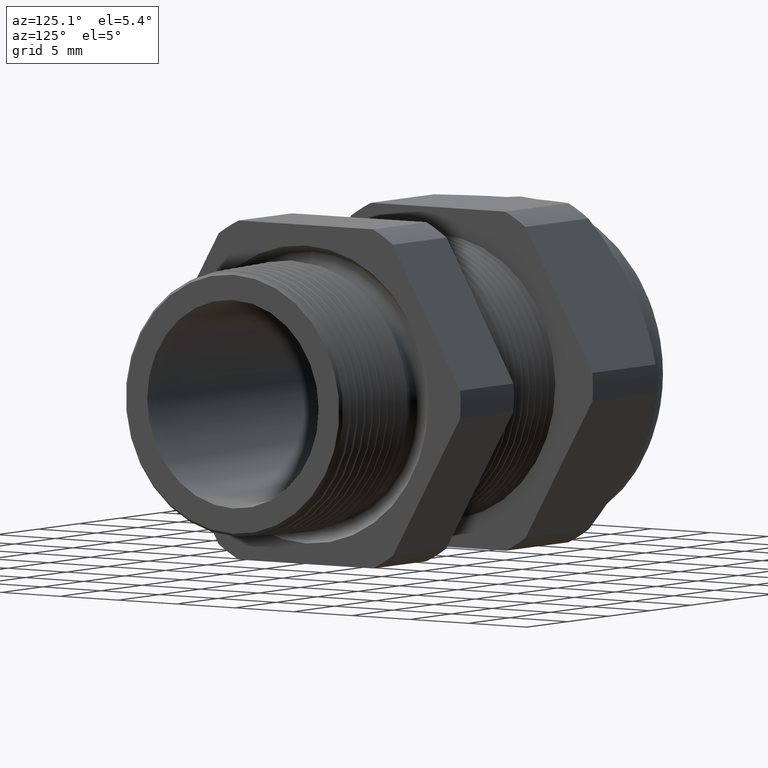
[diagram: clean part render]
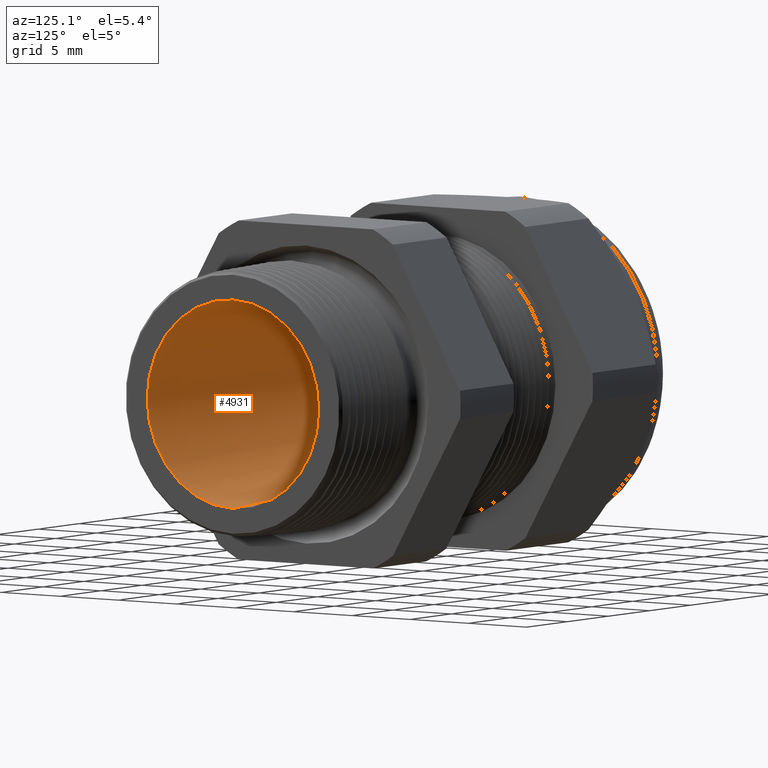
[diagram: same view with one face highlighted and labeled with its STEP entity id]
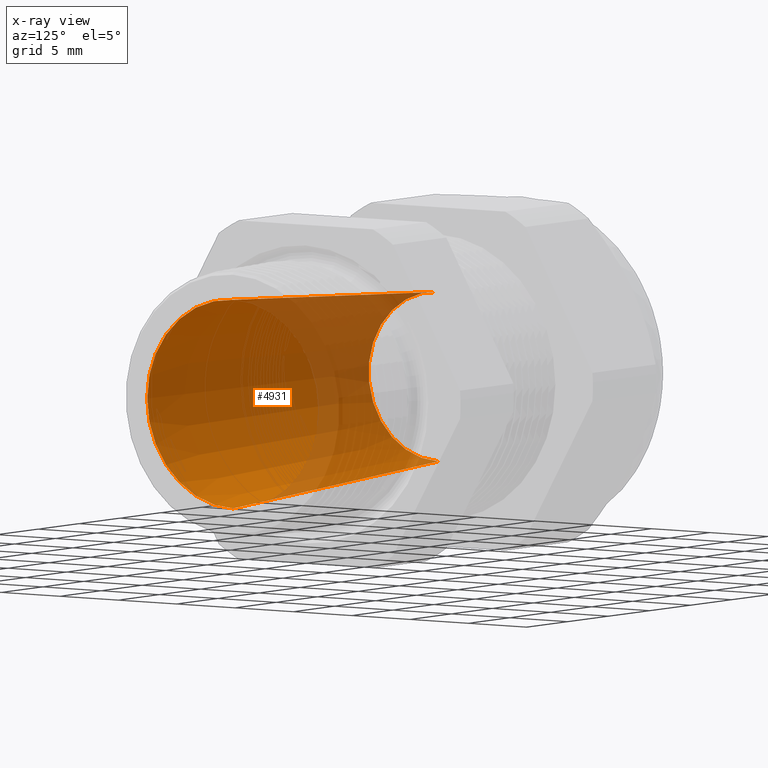
[diagram: x-ray of the same camera — body ghosted, the highlighted face saturated]
A machine part, auxiliary view. The second image highlights one B-rep face of the part: STEP entity #4931.
The next image is the same camera in x-ray: the body ghosted, the highlighted face saturated — about 36% of this face is hidden behind the body in this view.
In plain terms, the highlighted conical surface has half-angle 3.148 deg.
Its self-contained STEP definition (entity closure, byte-faithful):
#3501 = CARTESIAN_POINT ( 'NONE',  ( -0.9454330708661418100, 0.0000000000000000000, -0.2350000000000000100 ) ) ;
#3518 = DIRECTION ( 'NONE',  ( 0.9984911057575849300, 6.724985655221754600E-018, 0.05491367519111593100 ) ) ;
#3519 = VECTOR ( 'NONE', #3518, 39.37007874015748100 ) ;
#3520 = CARTESIAN_POINT ( 'NONE',  ( -0.9454330708661418100, 2.877919977996280400E-017, 0.2350000000000000100 ) ) ;
#3521 = LINE ( 'NONE', #3520, #3519 ) ;
#3522 = CARTESIAN_POINT ( 'NONE',  ( 0.03999999999999997300, 3.541623763392326200E-017, 0.2891955268946231900 ) ) ;
#3547 = DIRECTION ( 'NONE',  ( 0.0000000000000000000, 0.0000000000000000000, -1.000000000000000000 ) ) ;
#3548 = DIRECTION ( 'NONE',  ( 1.000000000000000000, 0.0000000000000000000, 0.0000000000000000000 ) ) ;
#3549 = CARTESIAN_POINT ( 'NONE',  ( -0.9454330708661418100, 0.0000000000000000000, 0.0000000000000000000 ) ) ;
#3550 = AXIS2_PLACEMENT_3D ( 'NONE', #3549, #3548, #3547 ) ;
#3551 = CIRCLE ( 'NONE', #3550, 0.2350000000000000100 ) ;
#3556 = CARTESIAN_POINT ( 'NONE',  ( -0.9454330708661418100, 2.877919977996280400E-017, 0.2350000000000000100 ) ) ;
#4109 = DIRECTION ( 'NONE',  ( 0.0000000000000000000, 0.0000000000000000000, -1.000000000000000000 ) ) ;
#4110 = DIRECTION ( 'NONE',  ( 1.000000000000000000, 0.0000000000000000000, 0.0000000000000000000 ) ) ;
#4111 = CARTESIAN_POINT ( 'NONE',  ( -0.9454330708661418100, 0.0000000000000000000, 0.0000000000000000000 ) ) ;
#4112 = AXIS2_PLACEMENT_3D ( 'NONE', #4111, #4110, #4109 ) ;
#4114 = CONICAL_SURFACE ( 'NONE', #4112, 0.2350000000000000100, 0.05494131151472639300 ) ;
#4119 = FACE_OUTER_BOUND ( 'NONE', #4648, .T. ) ;
#4160 = DIRECTION ( 'NONE',  ( 0.0000000000000000000, 0.0000000000000000000, -1.000000000000000000 ) ) ;
#4161 = DIRECTION ( 'NONE',  ( 1.000000000000000000, 0.0000000000000000000, 0.0000000000000000000 ) ) ;
#4162 = CARTESIAN_POINT ( 'NONE',  ( 0.03999999999999997300, 0.0000000000000000000, 0.0000000000000000000 ) ) ;
#4163 = AXIS2_PLACEMENT_3D ( 'NONE', #4162, #4161, #4160 ) ;
#4164 = CIRCLE ( 'NONE', #4163, 0.2891955268946231900 ) ;
#4180 = DIRECTION ( 'NONE',  ( 0.9984911057575849300, 0.0000000000000000000, -0.05491367519111593100 ) ) ;
#4181 = VECTOR ( 'NONE', #4180, 39.37007874015748100 ) ;
#4182 = CARTESIAN_POINT ( 'NONE',  ( -0.9454330708661418100, 0.0000000000000000000, -0.2350000000000000100 ) ) ;
#4183 = LINE ( 'NONE', #4182, #4181 ) ;
#4184 = CARTESIAN_POINT ( 'NONE',  ( 0.03999999999999997300, 0.0000000000000000000, -0.2891955268946231900 ) ) ;
#4608 = VERTEX_POINT ( 'NONE', #3522 ) ;
#4609 = ORIENTED_EDGE ( 'NONE', *, *, #4936, .T. ) ;
#4610 = EDGE_CURVE ( 'NONE', #4628, #4608, #3521, .T. ) ;
#4611 = ORIENTED_EDGE ( 'NONE', *, *, #4610, .T. ) ;
#4617 = VERTEX_POINT ( 'NONE', #3501 ) ;
#4627 = ORIENTED_EDGE ( 'NONE', *, *, #4634, .F. ) ;
#4628 = VERTEX_POINT ( 'NONE', #3556 ) ;
#4634 = EDGE_CURVE ( 'NONE', #4628, #4617, #3551, .T. ) ;
#4648 = EDGE_LOOP ( 'NONE', ( #4627, #4611, #4609, #4938 ) ) ;
#4931 = ADVANCED_FACE ( 'NONE', ( #4119 ), #4114, .F. ) ;
#4936 = EDGE_CURVE ( 'NONE', #4608, #4956, #4164, .T. ) ;
#4938 = ORIENTED_EDGE ( 'NONE', *, *, #4959, .F. ) ;
#4956 = VERTEX_POINT ( 'NONE', #4184 ) ;
#4959 = EDGE_CURVE ( 'NONE', #4617, #4956, #4183, .T. ) ;